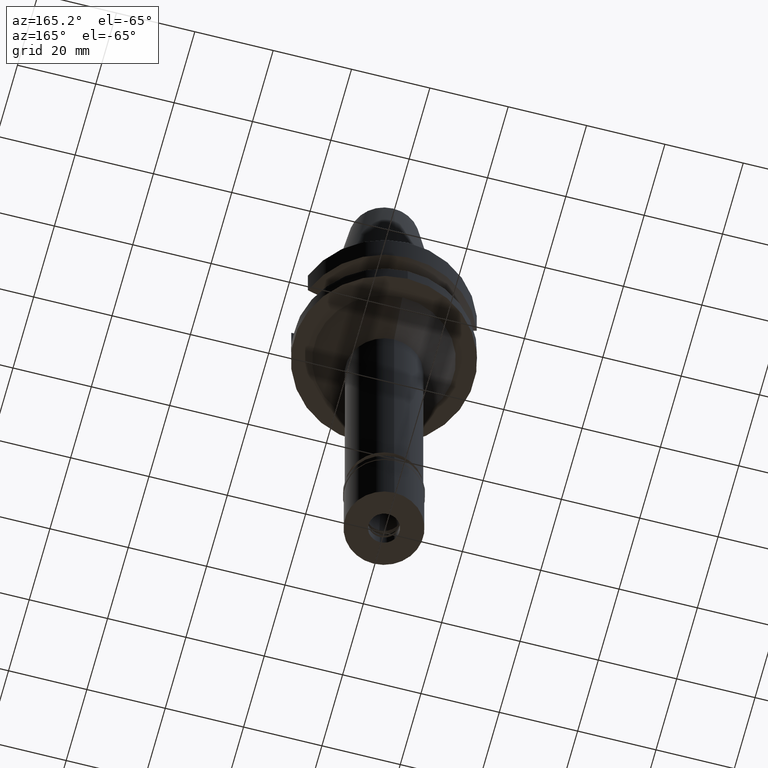
[diagram: clean part render]
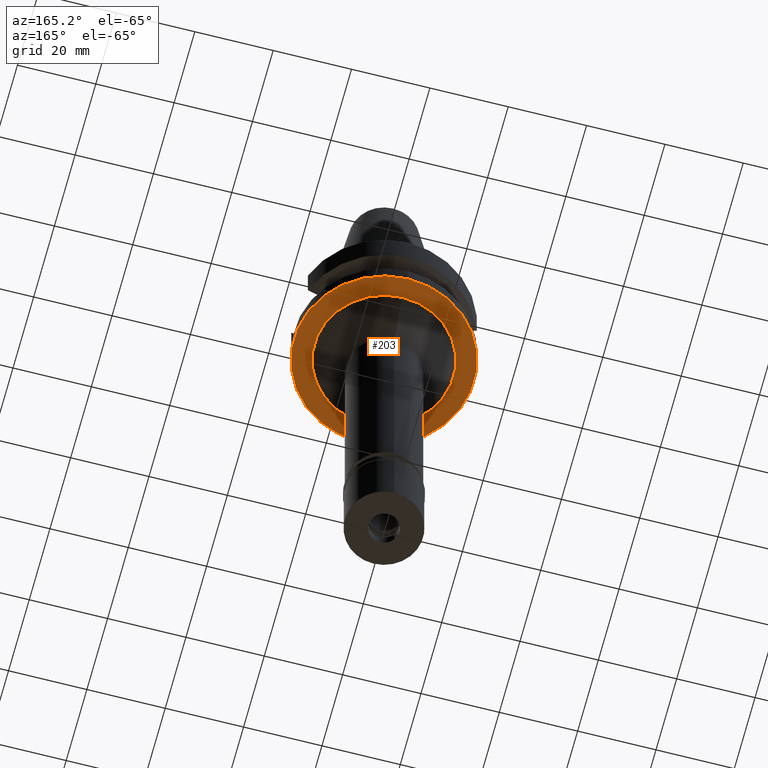
[diagram: same view with one face highlighted and labeled with its STEP entity id]
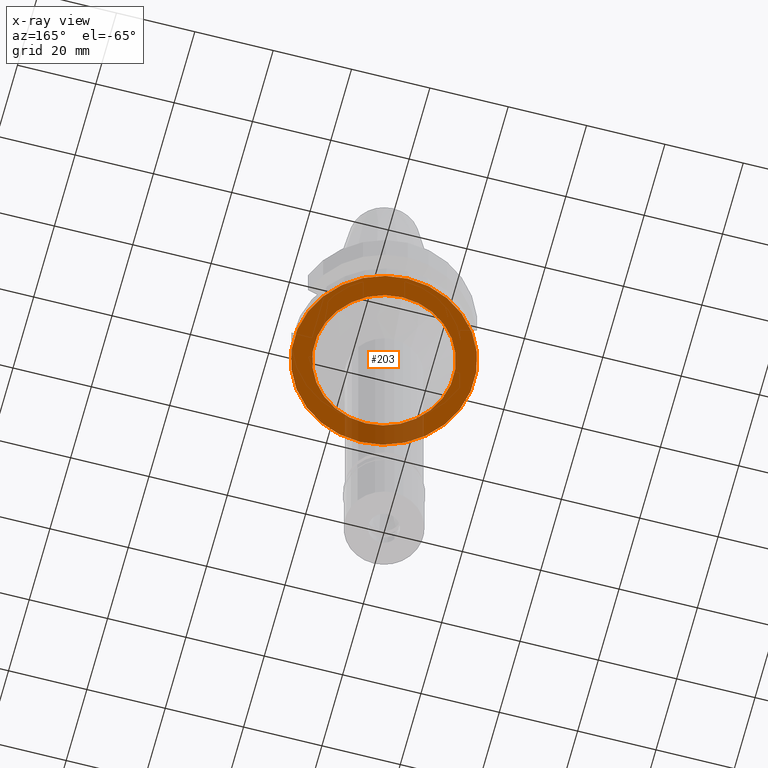
[diagram: x-ray of the same camera — body ghosted, the highlighted face saturated]
A machine part, auxiliary view. The second image highlights one B-rep face of the part: STEP entity #203.
The next image is the same camera in x-ray: the body ghosted, the highlighted face saturated — about 16% of this face is hidden behind the body in this view.
In plain terms, the highlighted planar face has unit normal (0, 0, -1).
Its self-contained STEP definition (entity closure, byte-faithful):
#47 = CARTESIAN_POINT ( 'NONE',  ( 0.0000000000000000000, 17.75000000000000000, -22.00000000000000000 ) ) ;
#203 = ADVANCED_FACE ( 'NONE', ( #1656, #2951 ), #1423, .T. ) ;
#255 = AXIS2_PLACEMENT_3D ( 'NONE', #3085, #2397, #1923 ) ;
#321 = EDGE_LOOP ( 'NONE', ( #1709, #1905 ) ) ;
#341 = DIRECTION ( 'NONE',  ( 0.0000000000000000000, 0.0000000000000000000, 1.000000000000000000 ) ) ;
#467 = DIRECTION ( 'NONE',  ( 0.0000000000000000000, -1.000000000000000000, 0.0000000000000000000 ) ) ;
#486 = ORIENTED_EDGE ( 'NONE', *, *, #665, .F. ) ;
#574 = DIRECTION ( 'NONE',  ( 0.0000000000000000000, 0.0000000000000000000, -1.000000000000000000 ) ) ;
#636 = CARTESIAN_POINT ( 'NONE',  ( 0.0000000000000000000, -23.00000000000000000, -22.00000000000000000 ) ) ;
#665 = EDGE_CURVE ( 'NONE', #1622, #1792, #2319, .T. ) ;
#754 = CARTESIAN_POINT ( 'NONE',  ( 0.0000000000000000000, -17.75000000000000000, -22.00000000000000000 ) ) ;
#807 = DIRECTION ( 'NONE',  ( 0.0000000000000000000, 1.000000000000000000, 0.0000000000000000000 ) ) ;
#883 = DIRECTION ( 'NONE',  ( 0.0000000000000000000, 0.0000000000000000000, -1.000000000000000000 ) ) ;
#912 = CIRCLE ( 'NONE', #2271, 17.75000000000000000 ) ;
#1085 = DIRECTION ( 'NONE',  ( 0.0000000000000000000, -1.000000000000000000, 0.0000000000000000000 ) ) ;
#1183 = CARTESIAN_POINT ( 'NONE',  ( 0.0000000000000000000, 23.00000000000000000, -22.00000000000000000 ) ) ;
#1229 = VERTEX_POINT ( 'NONE', #47 ) ;
#1289 = CARTESIAN_POINT ( 'NONE',  ( 0.0000000000000000000, 1.915592523225999865E-14, -22.00000000000000000 ) ) ;
#1322 = EDGE_CURVE ( 'NONE', #2537, #1229, #2924, .T. ) ;
#1419 = AXIS2_PLACEMENT_3D ( 'NONE', #1289, #341, #2922 ) ;
#1423 = PLANE ( 'NONE',  #1524 ) ;
#1431 = EDGE_CURVE ( 'NONE', #1229, #2537, #912, .T. ) ;
#1473 = AXIS2_PLACEMENT_3D ( 'NONE', #2021, #883, #1085 ) ;
#1524 = AXIS2_PLACEMENT_3D ( 'NONE', #1877, #2355, #467 ) ;
#1622 = VERTEX_POINT ( 'NONE', #636 ) ;
#1656 = FACE_OUTER_BOUND ( 'NONE', #2682, .T. ) ;
#1709 = ORIENTED_EDGE ( 'NONE', *, *, #1431, .F. ) ;
#1792 = VERTEX_POINT ( 'NONE', #1183 ) ;
#1877 = CARTESIAN_POINT ( 'NONE',  ( 0.0000000000000000000, 0.0000000000000000000, -22.00000000000000000 ) ) ;
#1887 = EDGE_CURVE ( 'NONE', #1792, #1622, #2301, .T. ) ;
#1905 = ORIENTED_EDGE ( 'NONE', *, *, #1322, .F. ) ;
#1923 = DIRECTION ( 'NONE',  ( 0.0000000000000000000, 1.000000000000000000, 0.0000000000000000000 ) ) ;
#2021 = CARTESIAN_POINT ( 'NONE',  ( 0.0000000000000000000, 0.0000000000000000000, -22.00000000000000000 ) ) ;
#2048 = CARTESIAN_POINT ( 'NONE',  ( 0.0000000000000000000, 0.0000000000000000000, -22.00000000000000000 ) ) ;
#2271 = AXIS2_PLACEMENT_3D ( 'NONE', #2048, #574, #807 ) ;
#2301 = CIRCLE ( 'NONE', #255, 23.00000000000000000 ) ;
#2319 = CIRCLE ( 'NONE', #1419, 23.00000000000000000 ) ;
#2322 = ORIENTED_EDGE ( 'NONE', *, *, #1887, .F. ) ;
#2355 = DIRECTION ( 'NONE',  ( 0.0000000000000000000, 0.0000000000000000000, -1.000000000000000000 ) ) ;
#2397 = DIRECTION ( 'NONE',  ( 0.0000000000000000000, 0.0000000000000000000, 1.000000000000000000 ) ) ;
#2537 = VERTEX_POINT ( 'NONE', #754 ) ;
#2682 = EDGE_LOOP ( 'NONE', ( #2322, #486 ) ) ;
#2922 = DIRECTION ( 'NONE',  ( 0.0000000000000000000, -1.000000000000000000, 0.0000000000000000000 ) ) ;
#2924 = CIRCLE ( 'NONE', #1473, 17.75000000000000000 ) ;
#2951 = FACE_BOUND ( 'NONE', #321, .T. ) ;
#3085 = CARTESIAN_POINT ( 'NONE',  ( 0.0000000000000000000, 1.915592523225999865E-14, -22.00000000000000000 ) ) ;